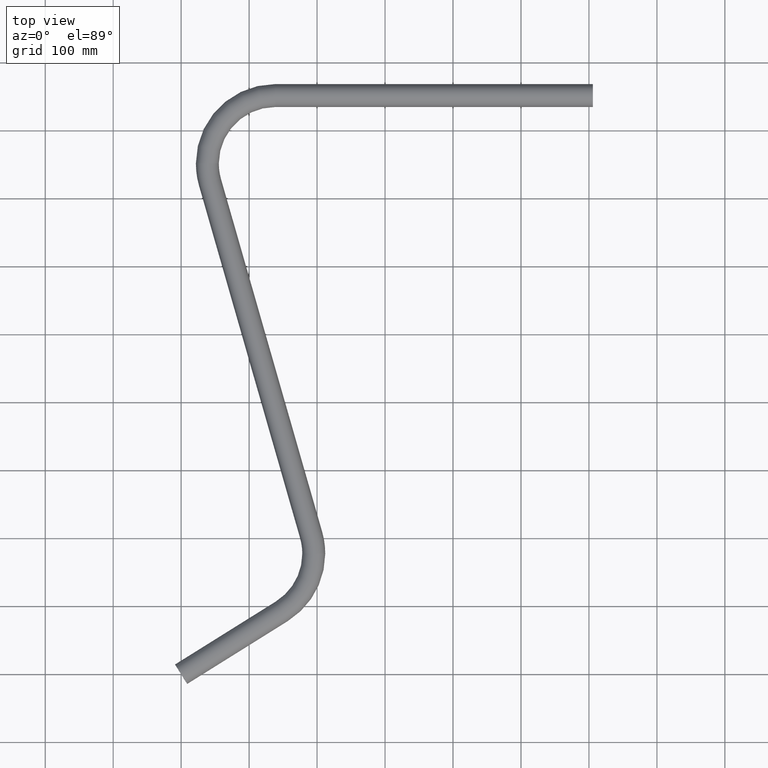
[diagram: clean part render]
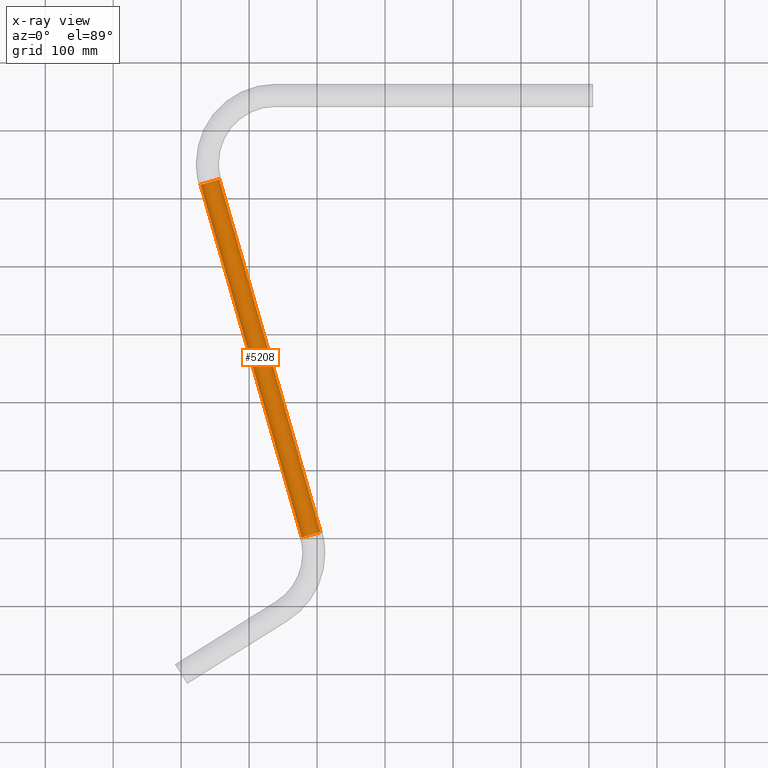
[diagram: x-ray — body ghosted, one internal face saturated and labeled with its STEP entity id]
A machine part, top view, then the same camera in x-ray: the body is ghosted and one INTERNAL B-rep face — a face not visible from any outside direction — is saturated and labeled: STEP entity #5208.
In plain terms, the highlighted cylindrical surface (edge-blend (fillet) strip) has radius 14.25 mm, axis along (-0.2756, 0.9613, 0).
Its self-contained STEP definition (entity closure, byte-faithful):
#422 = DIRECTION ( 'NONE',  ( -0.2756373558170756000, 0.9612616959382969100, -3.826221258505971600E-017 ) ) ;
#613 = VERTEX_POINT ( 'NONE', #855 ) ;
#759 = LINE ( 'NONE', #8701, #7949 ) ;
#855 = CARTESIAN_POINT ( 'NONE',  ( 28.71561528902388700, 720.0119967180650100, 0.0000000000000000000 ) ) ;
#1199 = FACE_OUTER_BOUND ( 'NONE', #1328, .T. ) ;
#1328 = EDGE_LOOP ( 'NONE', ( #8982, #7631, #7734, #2595 ) ) ;
#1627 = CARTESIAN_POINT ( 'NONE',  ( 56.11157362326535700, 727.8676613588515900, 1.745121688784978600E-015 ) ) ;
#2568 = DIRECTION ( 'NONE',  ( -0.9612616959383010200, -0.2756373558170611700, 0.0000000000000000000 ) ) ;
#2595 = ORIENTED_EDGE ( 'NONE', *, *, #8752, .T. ) ;
#3516 = CARTESIAN_POINT ( 'NONE',  ( 42.41359445614459400, 723.9398290384583600, 0.0000000000000000000 ) ) ;
#3681 = VERTEX_POINT ( 'NONE', #8783 ) ;
#3914 = EDGE_CURVE ( 'NONE', #3681, #5197, #4893, .T. ) ;
#4004 = CIRCLE ( 'NONE', #7653, 14.24999999999999800 ) ;
#4069 = DIRECTION ( 'NONE',  ( -0.2756373558170607800, 0.9612616959383011300, 0.0000000000000000000 ) ) ;
#4470 = DIRECTION ( 'NONE',  ( -0.9612616959382976900, -0.2756373558170729900, 0.0000000000000000000 ) ) ;
#4893 = LINE ( 'NONE', #9274, #12030 ) ;
#5197 = VERTEX_POINT ( 'NONE', #1627 ) ;
#5208 = ADVANCED_FACE ( 'NONE', ( #1199 ), #5886, .F. ) ;
#5377 = CARTESIAN_POINT ( 'NONE',  ( 177.5432802884091600, 200.9882481562183000, 0.0000000000000000000 ) ) ;
#5641 = CIRCLE ( 'NONE', #11243, 14.24999999999999100 ) ;
#5886 = CYLINDRICAL_SURFACE ( 'NONE', #11710, 14.24999999999999800 ) ;
#6074 = CARTESIAN_POINT ( 'NONE',  ( 191.2412594555299000, 204.9160804766116300, 0.0000000000000000000 ) ) ;
#6269 = CARTESIAN_POINT ( 'NONE',  ( 191.2412594555299000, 204.9160804766116300, 0.0000000000000000000 ) ) ;
#7037 = DIRECTION ( 'NONE',  ( -0.9612616959382972400, -0.2756373558170747700, 0.0000000000000000000 ) ) ;
#7231 = DIRECTION ( 'NONE',  ( -0.2756373558170608400, 0.9612616959383013500, 0.0000000000000000000 ) ) ;
#7505 = EDGE_CURVE ( 'NONE', #12106, #3681, #4004, .T. ) ;
#7631 = ORIENTED_EDGE ( 'NONE', *, *, #7505, .F. ) ;
#7653 = AXIS2_PLACEMENT_3D ( 'NONE', #6074, #422, #7037 ) ;
#7734 = ORIENTED_EDGE ( 'NONE', *, *, #10129, .T. ) ;
#7949 = VECTOR ( 'NONE', #4069, 1000.000000000000200 ) ;
#8701 = CARTESIAN_POINT ( 'NONE',  ( 177.5432802884091100, 200.9882481562185000, 0.0000000000000000000 ) ) ;
#8752 = EDGE_CURVE ( 'NONE', #613, #5197, #5641, .T. ) ;
#8783 = CARTESIAN_POINT ( 'NONE',  ( 204.9392386226506300, 208.8439127970049200, 1.745121688784978600E-015 ) ) ;
#8982 = ORIENTED_EDGE ( 'NONE', *, *, #3914, .F. ) ;
#9274 = CARTESIAN_POINT ( 'NONE',  ( 204.9392386226506600, 208.8439127970047200, 1.745121688784978600E-015 ) ) ;
#10042 = DIRECTION ( 'NONE',  ( -0.2756373558170756000, 0.9612616959382969100, -3.826221258505971600E-017 ) ) ;
#10129 = EDGE_CURVE ( 'NONE', #12106, #613, #759, .T. ) ;
#10213 = DIRECTION ( 'NONE',  ( -0.2756373558170607800, 0.9612616959383011300, 0.0000000000000000000 ) ) ;
#11243 = AXIS2_PLACEMENT_3D ( 'NONE', #3516, #10042, #4470 ) ;
#11710 = AXIS2_PLACEMENT_3D ( 'NONE', #6269, #7231, #2568 ) ;
#12030 = VECTOR ( 'NONE', #10213, 1000.000000000000200 ) ;
#12106 = VERTEX_POINT ( 'NONE', #5377 ) ;